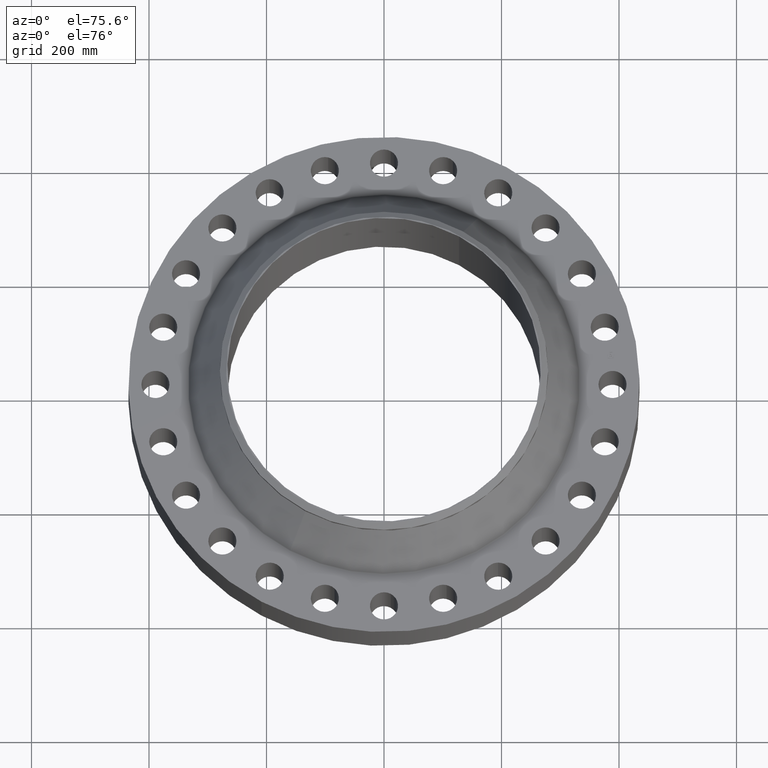
[diagram: clean part render]
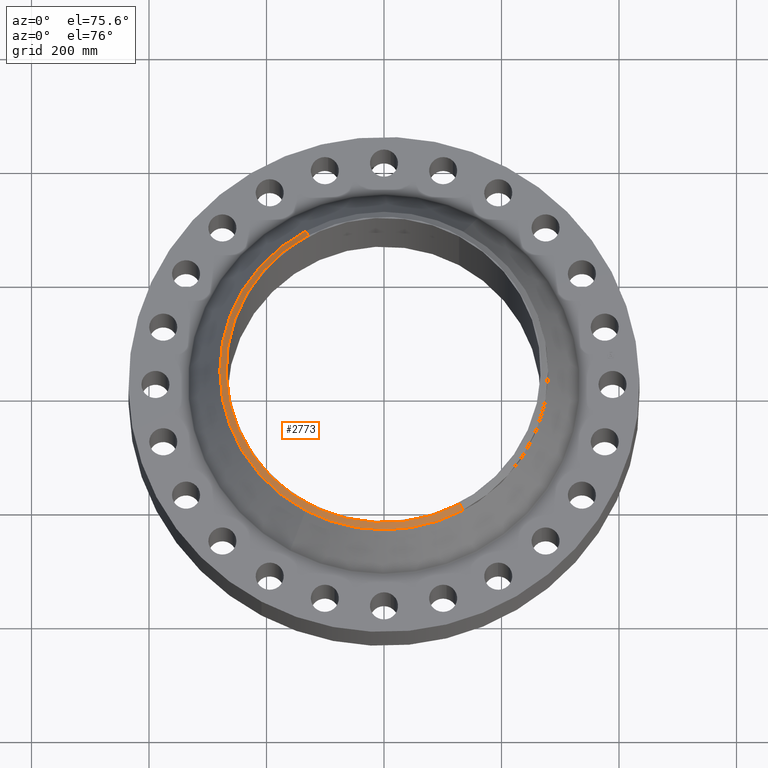
[diagram: same view with one face highlighted and labeled with its STEP entity id]
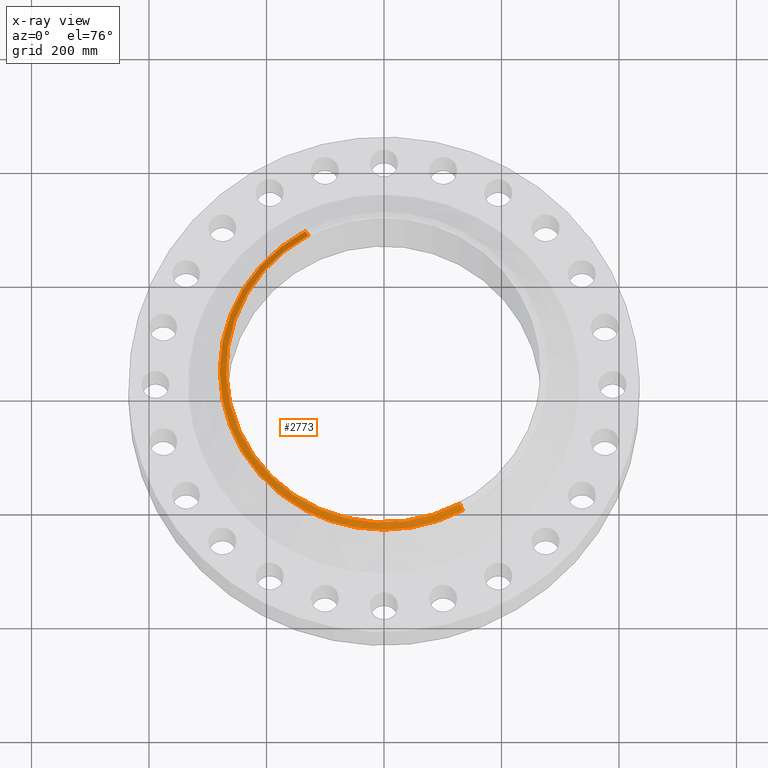
[diagram: x-ray of the same camera — body ghosted, the highlighted face saturated]
A machine part, auxiliary view. The second image highlights one B-rep face of the part: STEP entity #2773.
The next image is the same camera in x-ray: the body ghosted, the highlighted face saturated — about 0% of this face is hidden behind the body in this view.
In plain terms, the highlighted conical surface has half-angle 52.5 deg.
Its self-contained STEP definition (entity closure, byte-faithful):
#2443=AXIS2_PLACEMENT_3D('Circle Axis2P3D',#2441,#2442,$) ;
#2752=AXIS2_PLACEMENT_3D('Cone Axis2P3D',#2749,#2750,#2751) ;
#2756=AXIS2_PLACEMENT_3D('Circle Axis2P3D',#2754,#2755,$) ;
#2763=AXIS2_PLACEMENT_3D('Circle Axis2P3D',#2761,#2762,$) ;
#2436=CARTESIAN_POINT('Vertex',(5.07171819777,-9.283717889,7.75000000002)) ;
#2438=CARTESIAN_POINT('Vertex',(-5.07171819777,9.28371788899,7.75000000003)) ;
#2441=CARTESIAN_POINT('Axis2P3D Location',(3.08546189473E-011,2.19317127888E-012,7.75000000003)) ;
#2708=CARTESIAN_POINT('Line Origine',(-5.17269956122,9.46856303491,7.58837797697)) ;
#2712=CARTESIAN_POINT('Vertex',(-5.27368092465,9.65340818079,7.42675595388)) ;
#2715=CARTESIAN_POINT('Line Origine',(5.17269956122,-9.46856303491,7.58837797697)) ;
#2719=CARTESIAN_POINT('Vertex',(5.27368092465,-9.6534081808,7.42675595392)) ;
#2749=CARTESIAN_POINT('Axis2P3D Location',(0.,0.,7.75000000003)) ;
#2754=CARTESIAN_POINT('Axis2P3D Location',(0.,0.,7.42675595392)) ;
#2758=CARTESIAN_POINT('Vertex',(-5.27368092465,-9.65340818079,7.42675595388)) ;
#2761=CARTESIAN_POINT('Axis2P3D Location',(0.,0.,7.42675595392)) ;
#2442=DIRECTION('Axis2P3D Direction',(0.,0.,-0.0393700787402)) ;
#2709=DIRECTION('Vector Direction',(-0.014974561121,0.02741075027,-0.023966985394)) ;
#2716=DIRECTION('Vector Direction',(0.014974561121,-0.02741075027,-0.023966985394)) ;
#2750=DIRECTION('Axis2P3D Direction',(-0.,-0.,-0.0393700787402)) ;
#2751=DIRECTION('Axis2P3D XDirection',(0.0188750212049,-0.0345504945626,0.)) ;
#2755=DIRECTION('Axis2P3D Direction',(-0.,0.,-0.0393700787402)) ;
#2762=DIRECTION('Axis2P3D Direction',(-0.,0.,-0.0393700787402)) ;
#2710=VECTOR('Line Direction',#2709,0.0393700787402) ;
#2717=VECTOR('Line Direction',#2716,0.0393700787402) ;
#2767=ORIENTED_EDGE('',*,*,#2721,.F.) ;
#2768=ORIENTED_EDGE('',*,*,#2445,.F.) ;
#2769=ORIENTED_EDGE('',*,*,#2714,.T.) ;
#2770=ORIENTED_EDGE('',*,*,#2760,.T.) ;
#2771=ORIENTED_EDGE('',*,*,#2765,.F.) ;
#2773=ADVANCED_FACE('PartBody',(#2772),#2753,.T.) ;
#2444=CIRCLE('generated circle',#2443,10.5787401575) ;
#2757=CIRCLE('generated circle',#2756,11.) ;
#2764=CIRCLE('generated circle',#2763,11.) ;
#2753=CONICAL_SURFACE('Cone',#2752,10.5787401575,0.916297857297) ;
#2445=EDGE_CURVE('',#2439,#2437,#2444,.F.) ;
#2714=EDGE_CURVE('',#2439,#2713,#2711,.T.) ;
#2721=EDGE_CURVE('',#2437,#2720,#2718,.T.) ;
#2760=EDGE_CURVE('',#2713,#2759,#2757,.F.) ;
#2765=EDGE_CURVE('',#2720,#2759,#2764,.T.) ;
#2766=EDGE_LOOP('',(#2767,#2768,#2769,#2770,#2771)) ;
#2772=FACE_OUTER_BOUND('',#2766,.T.) ;
#2711=LINE('Line',#2708,#2710) ;
#2718=LINE('Line',#2715,#2717) ;
#2437=VERTEX_POINT('',#2436) ;
#2439=VERTEX_POINT('',#2438) ;
#2713=VERTEX_POINT('',#2712) ;
#2720=VERTEX_POINT('',#2719) ;
#2759=VERTEX_POINT('',#2758) ;